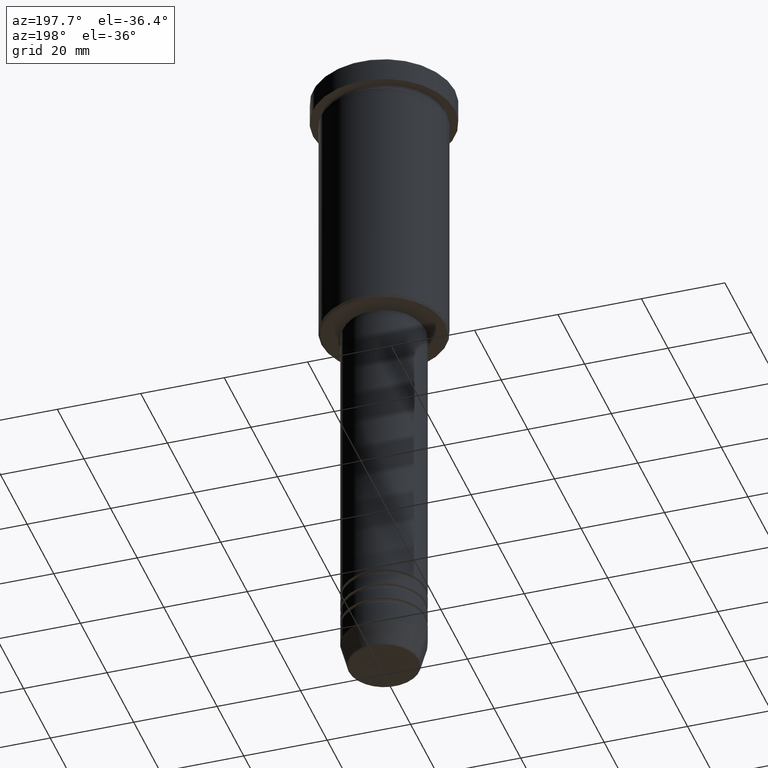
[diagram: clean part render]
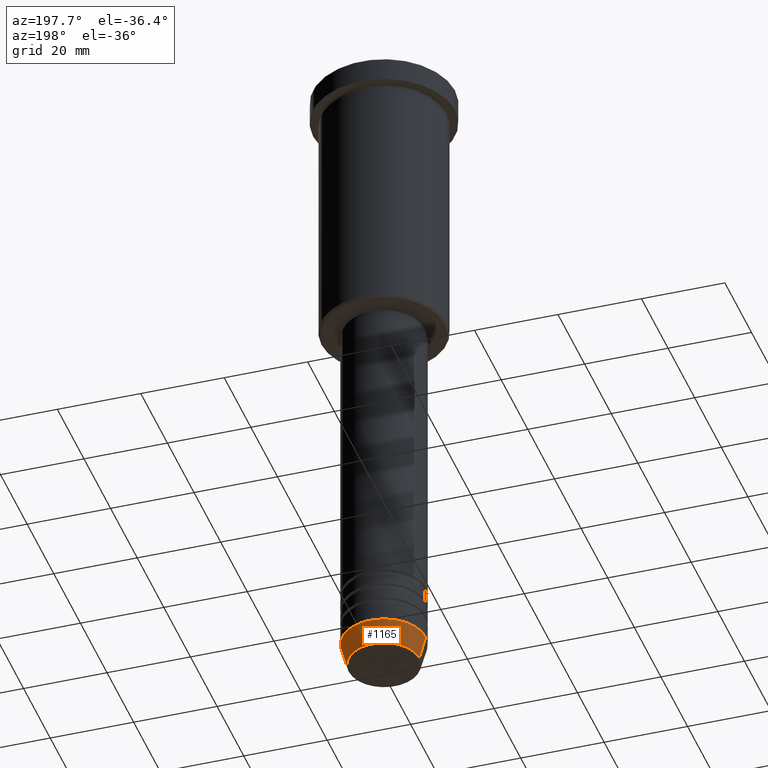
[diagram: same view with one face highlighted and labeled with its STEP entity id]
A machine part, auxiliary view. The second image highlights one B-rep face of the part: STEP entity #1165.
In plain terms, the highlighted conical surface has half-angle 15 deg.
Its self-contained STEP definition (entity closure, byte-faithful):
#70 = AXIS2_PLACEMENT_3D ( 'NONE', #846, #1027, #222 ) ;
#191 = DIRECTION ( 'NONE',  ( 1.000000000000000000, 0.000000000000000000, 0.000000000000000000 ) ) ;
#219 = VERTEX_POINT ( 'NONE', #1110 ) ;
#222 = DIRECTION ( 'NONE',  ( 1.000000000000000000, 0.000000000000000000, 0.000000000000000000 ) ) ;
#274 = CARTESIAN_POINT ( 'NONE',  ( 0.000000000000000000, 0.000000000000000000, -159.6294095225512990 ) ) ;
#307 = EDGE_CURVE ( 'NONE', #219, #1070, #650, .T. ) ;
#309 = ORIENTED_EDGE ( 'NONE', *, *, #738, .T. ) ;
#336 = CARTESIAN_POINT ( 'NONE',  ( 10.00000000000000178, 0.000000000000000000, -154.0000000000000000 ) ) ;
#338 = EDGE_LOOP ( 'NONE', ( #309, #1119, #346, #1128 ) ) ;
#346 = ORIENTED_EDGE ( 'NONE', *, *, #368, .F. ) ;
#368 = EDGE_CURVE ( 'NONE', #842, #1070, #416, .T. ) ;
#389 = DIRECTION ( 'NONE',  ( -0.000000000000000000, -0.000000000000000000, 1.000000000000000000 ) ) ;
#416 = CIRCLE ( 'NONE', #1096, 10.00000000000000178 ) ;
#482 = CARTESIAN_POINT ( 'NONE',  ( 0.000000000000000000, 0.000000000000000000, -154.0000000000000000 ) ) ;
#558 = CARTESIAN_POINT ( 'NONE',  ( -10.00000000000000178, 1.224646799147353454E-15, -154.0000000000000000 ) ) ;
#581 = VECTOR ( 'NONE', #675, 999.9999999999998863 ) ;
#615 = DIRECTION ( 'NONE',  ( -0.000000000000000000, -0.000000000000000000, 1.000000000000000000 ) ) ;
#643 = CONICAL_SURFACE ( 'NONE', #70, 10.00000000000000178, 0.2617993877991489637 ) ;
#650 = LINE ( 'NONE', #558, #838 ) ;
#675 = DIRECTION ( 'NONE',  ( 0.2588190451025203509, 0.000000000000000000, 0.9659258262890684232 ) ) ;
#700 = CARTESIAN_POINT ( 'NONE',  ( 8.491604264568310967, 0.000000000000000000, -159.6294095225512990 ) ) ;
#735 = FACE_OUTER_BOUND ( 'NONE', #338, .T. ) ;
#738 = EDGE_CURVE ( 'NONE', #872, #219, #1080, .T. ) ;
#750 = DIRECTION ( 'NONE',  ( 1.000000000000000000, 0.000000000000000000, 0.000000000000000000 ) ) ;
#838 = VECTOR ( 'NONE', #1032, 999.9999999999998863 ) ;
#842 = VERTEX_POINT ( 'NONE', #336 ) ;
#846 = CARTESIAN_POINT ( 'NONE',  ( 0.000000000000000000, 0.000000000000000000, -154.0000000000000000 ) ) ;
#848 = CARTESIAN_POINT ( 'NONE',  ( -10.00000000000000178, 1.224646799147353454E-15, -154.0000000000000000 ) ) ;
#872 = VERTEX_POINT ( 'NONE', #700 ) ;
#874 = EDGE_CURVE ( 'NONE', #872, #842, #1082, .T. ) ;
#897 = CARTESIAN_POINT ( 'NONE',  ( 10.00000000000000178, 0.000000000000000000, -154.0000000000000000 ) ) ;
#904 = AXIS2_PLACEMENT_3D ( 'NONE', #274, #615, #191 ) ;
#1027 = DIRECTION ( 'NONE',  ( -0.000000000000000000, -0.000000000000000000, 1.000000000000000000 ) ) ;
#1032 = DIRECTION ( 'NONE',  ( -0.2588190451025203509, 3.169619151431759395E-17, 0.9659258262890684232 ) ) ;
#1070 = VERTEX_POINT ( 'NONE', #848 ) ;
#1080 = CIRCLE ( 'NONE', #904, 8.491604264568310967 ) ;
#1082 = LINE ( 'NONE', #897, #581 ) ;
#1096 = AXIS2_PLACEMENT_3D ( 'NONE', #482, #389, #750 ) ;
#1110 = CARTESIAN_POINT ( 'NONE',  ( -8.491604264568310967, 1.132284198685156387E-15, -159.6294095225512990 ) ) ;
#1119 = ORIENTED_EDGE ( 'NONE', *, *, #307, .T. ) ;
#1128 = ORIENTED_EDGE ( 'NONE', *, *, #874, .F. ) ;
#1165 = ADVANCED_FACE ( 'NONE', ( #735 ), #643, .T. ) ;